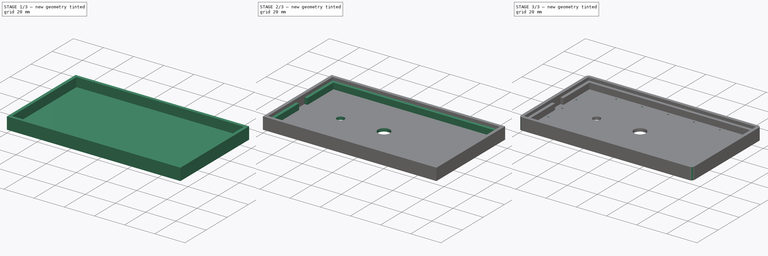
[diagram: build sequence overview — one tinted view per stage of 3, left to right]
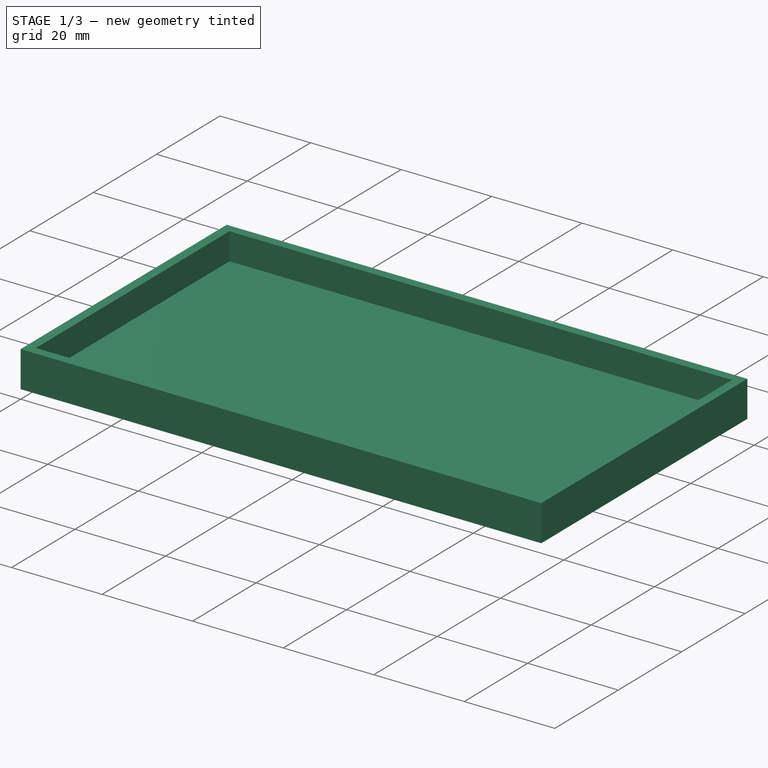
[diagram: stage 1 of 3 — iso view after this stage's code; geometry added in this stage tinted green]
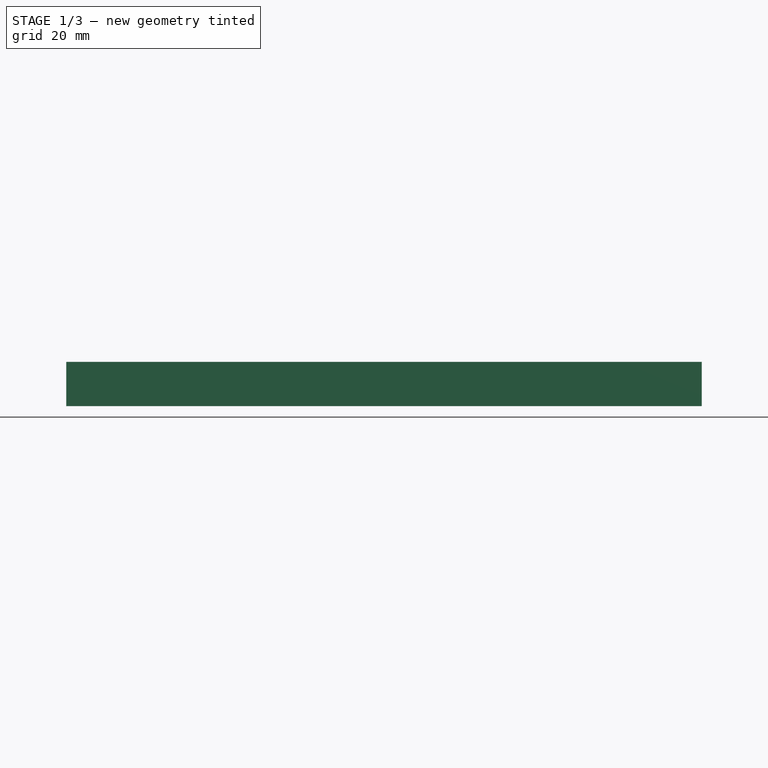
[diagram: stage 1 of 3 — front view after this stage's code; geometry added in this stage tinted green]
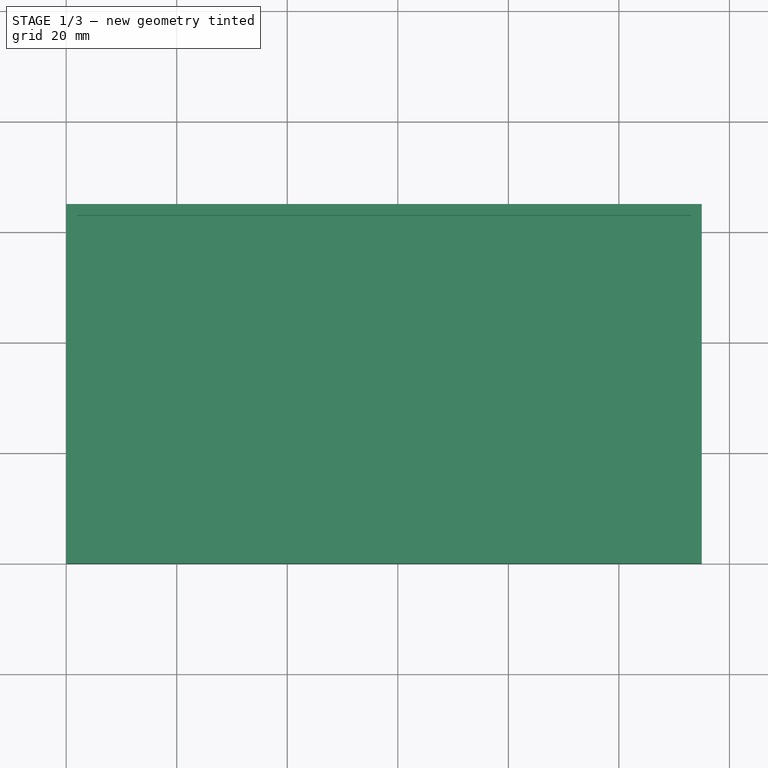
[diagram: stage 1 of 3 — top view after this stage's code; geometry added in this stage tinted green]
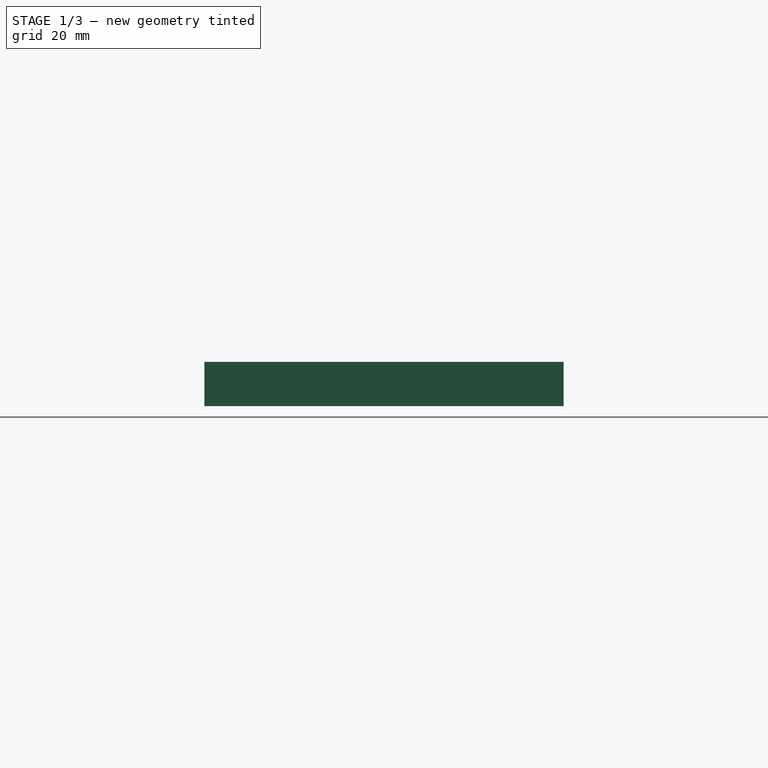
[diagram: stage 1 of 3 — right view after this stage's code; geometry added in this stage tinted green]
FCSTD DOCUMENT  (FreeCAD 0.19R24291 (Git))
Label: Outdoor_solar_panel
License: All rights reserved
LicenseURL: http://en.wikipedia.org/wiki/All_rights_reserved
objects: Sketcher::SketchObject×6, PartDesign::Pocket×4, PartDesign::Pad×2, PartDesign::Fillet×1, PartDesign::Body×1
note: 21 computed .brp shape members not serialized (recipe doc carries the construction recipe); baked Part::Feature solids carry a one-line shape summary decoded from their .brp

FEATURE [Sketcher::SketchObject] Sketch
  FullyConstrained = true
  MapMode = 5
  Support = -> [XY_Plane]
  sketch-geometry (4):
    g0: LineSegment StartX=0 StartY=0 StartZ=0 EndX=115 EndY=0 EndZ=0
    g1: LineSegment StartX=115 StartY=0 StartZ=0 EndX=115 EndY=65 EndZ=0
    g2: LineSegment StartX=115 StartY=65 StartZ=0 EndX=0 EndY=65 EndZ=0
    g3: LineSegment StartX=0 StartY=65 StartZ=0 EndX=0 EndY=0 EndZ=0
  constraints (11):
    c: Coincident(g0,g1)
    c: Coincident(g1,g2)
    c: Coincident(g2,g3)
    c: Coincident(g3,g0)
    c: Horizontal(g0)
    c: Horizontal(g2)
    c: Vertical(g1)
    c: Vertical(g3)
    c: Coincident(g0,g-1)
    c: DistanceX(g0,g0) = 115
    c: DistanceY(g1,g1) = 65
FEATURE [PartDesign::Pad] Pad
  Direction = (1,1,1)
  Length = 8
  Length2 = 100
  Profile = -> Sketch
  Type = 0
FEATURE [Sketcher::SketchObject] Sketch001
  FullyConstrained = true
  MapMode = 5
  Placement = pos=(0,0,8) rot=(0,0,1;0rad)
  Support = -> [Pad]
  sketch-geometry (4):
    g0: LineSegment StartX=2 StartY=2 StartZ=0 EndX=113 EndY=2 EndZ=0
    g1: LineSegment StartX=113 StartY=2 StartZ=0 EndX=113 EndY=63 EndZ=0
    g2: LineSegment StartX=113 StartY=63 StartZ=0 EndX=2 EndY=63 EndZ=0
    g3: LineSegment StartX=2 StartY=63 StartZ=0 EndX=2 EndY=2 EndZ=0
  constraints (12):
    c: Coincident(g0,g1)
    c: Coincident(g1,g2)
    c: Coincident(g2,g3)
    c: Coincident(g3,g0)
    c: Horizontal(g0)
    c: Horizontal(g2)
    c: Vertical(g1)
    c: Vertical(g3)
    c: DistanceX(g0,g0) = 111
    c: DistanceY(g1,g1) = 61
    c: DistanceY(g-1,g0) = 2
    c: DistanceX(g-1,g0) = 2
FEATURE [PartDesign::Pocket] Pocket
  BaseFeature = -> Pad
  Length = 6
  Length2 = 100
  Profile = -> Sketch001
  Type = 0
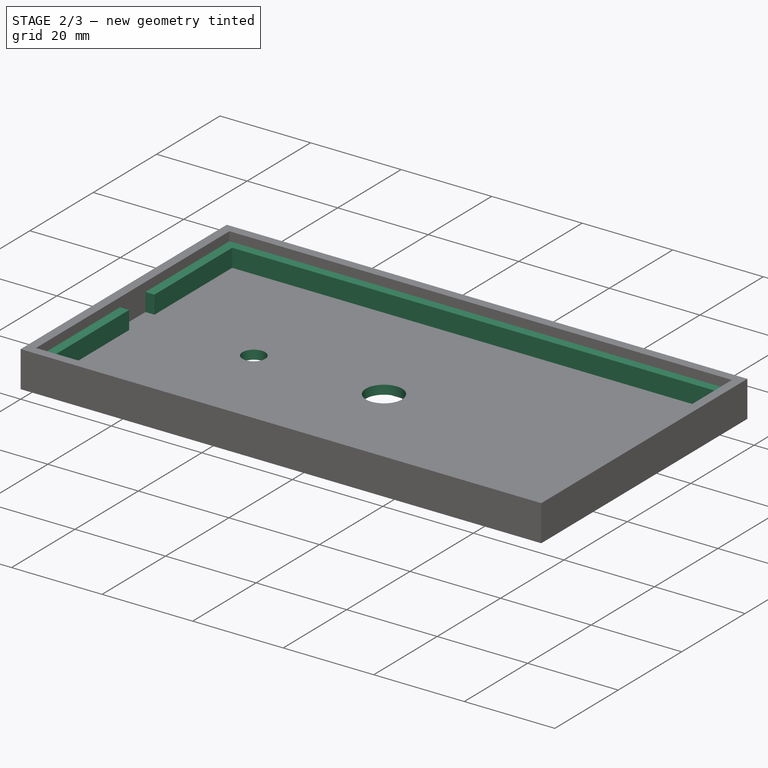
[diagram: stage 2 of 3 — iso view after this stage's code; geometry added in this stage tinted green]
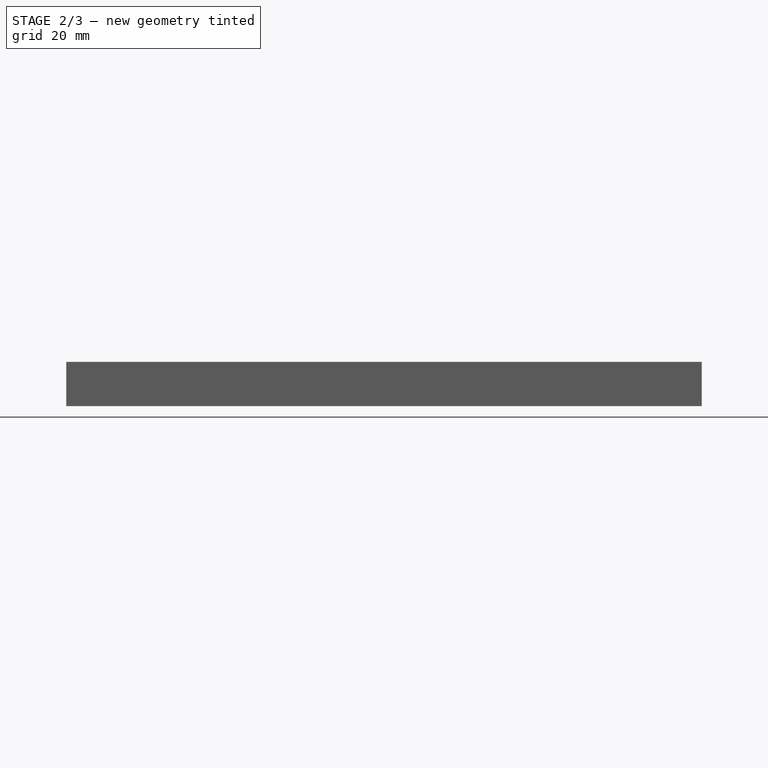
[diagram: stage 2 of 3 — front view after this stage's code; geometry added in this stage tinted green]
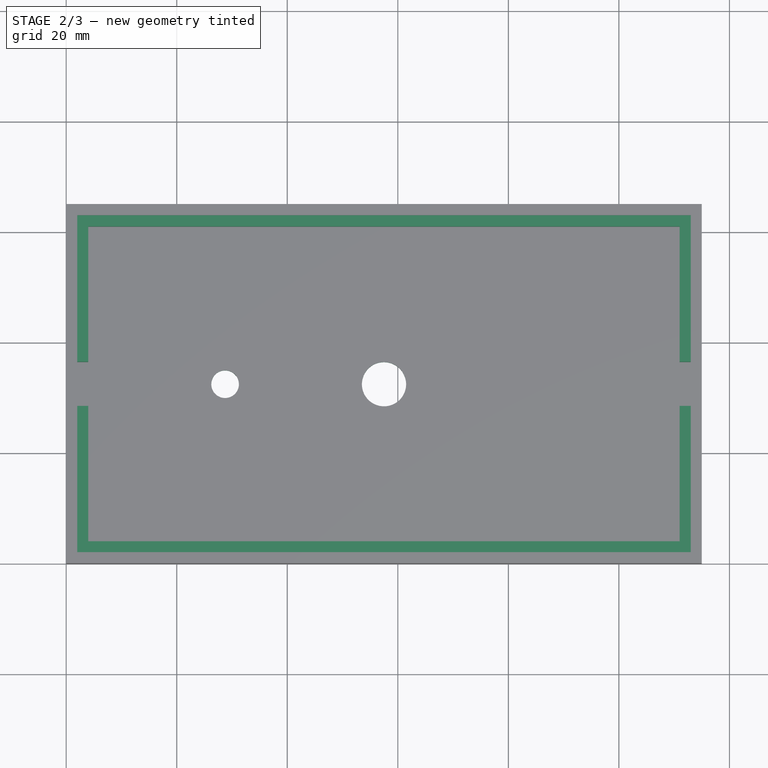
[diagram: stage 2 of 3 — top view after this stage's code; geometry added in this stage tinted green]
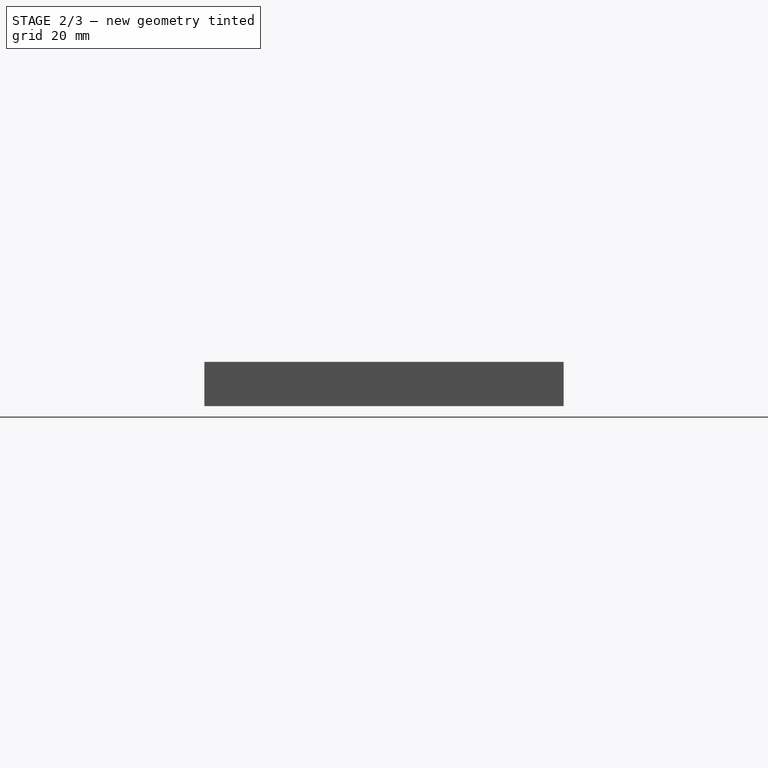
[diagram: stage 2 of 3 — right view after this stage's code; geometry added in this stage tinted green]
FEATURE [Sketcher::SketchObject] Sketch002
  FullyConstrained = true
  MapMode = 5
  Placement = pos=(0,0,2) rot=(0,0,1;0rad)
  Support = -> [Pocket]
  sketch-geometry (18):
    g0: LineSegment StartX=2 StartY=63 StartZ=0 EndX=113 EndY=63 EndZ=0
    g1: LineSegment StartX=113 StartY=63 StartZ=0 EndX=113 EndY=36.5 EndZ=0
    g2: LineSegment StartX=113 StartY=2 StartZ=0 EndX=2 EndY=2 EndZ=0
    g3: LineSegment StartX=2 StartY=2 StartZ=0 EndX=2 EndY=28.5 EndZ=0
    g4: LineSegment StartX=4 StartY=61 StartZ=0 EndX=111 EndY=61 EndZ=0
    g5: LineSegment StartX=111 StartY=61 StartZ=0 EndX=111 EndY=36.5 EndZ=0
    g6: LineSegment StartX=111 StartY=4 StartZ=0 EndX=4 EndY=4 EndZ=0
    g7: LineSegment StartX=4 StartY=4 StartZ=0 EndX=4 EndY=28.5 EndZ=0
    g8: LineSegment StartX=2 StartY=36.5 StartZ=0 EndX=113 EndY=36.5 EndZ=0
    g9: LineSegment StartX=2 StartY=28.5 StartZ=0 EndX=113 EndY=28.5 EndZ=0
    g10: LineSegment StartX=2 StartY=36.5 StartZ=0 EndX=4 EndY=36.5 EndZ=0
    g11: LineSegment StartX=2 StartY=28.5 StartZ=0 EndX=4 EndY=28.5 EndZ=0
    g12: LineSegment StartX=113 StartY=36.5 StartZ=0 EndX=111 EndY=36.5 EndZ=0
    g13: LineSegment StartX=113 StartY=28.5 StartZ=0 EndX=111 EndY=28.5 EndZ=0
    g14: LineSegment StartX=111 StartY=28.5 StartZ=0 EndX=111 EndY=4 EndZ=0
    g15: LineSegment StartX=113 StartY=28.5 StartZ=0 EndX=113 EndY=2 EndZ=0
    g16: LineSegment StartX=4 StartY=36.5 StartZ=0 EndX=4 EndY=61 EndZ=0
    g17: LineSegment StartX=2 StartY=36.5 StartZ=0 EndX=2 EndY=63 EndZ=0
  constraints (52):
    c: Coincident(g0,g1)
    c: Coincident(g15,g2)
    c: Coincident(g2,g3)
    c: Coincident(g17,g0)
    c: Horizontal(g0)
    c: Horizontal(g2)
    c: Vertical(g1)
    c: Vertical(g3)
    c: Coincident(g4,g5)
    c: Coincident(g14,g6)
    c: Coincident(g6,g7)
    c: Coincident(g16,g4)
    c: Horizontal(g4)
    c: Horizontal(g6)
    c: Vertical(g5)
    c: Vertical(g7)
    c: DistanceX(g2,g2) = 111
    c: DistanceY(g3,g17) = 61
    c: DistanceX(g-1,g2) = 2
    c: DistanceY(g-1,g2) = 2
    c: DistanceY(g2,g6) = 2
    c: DistanceX(g2,g6) = 2
    c: DistanceX(g6,g6) = 107
    c: DistanceY(g14,g5) = 57
    c: Horizontal(g8)
    c: Horizontal(g9)
    c: DistanceY(g9,g8) = 8
    c: DistanceY(g6,g9) = 24.5
    c: Coincident(g10,g8)
    c: PointOnObject(g10,g7)
    c: Horizontal(g10)
    c: Coincident(g11,g9)
    c: PointOnObject(g11,g9)
    c: PointOnObject(g11,g7)
    c: Coincident(g12,g8)
    c: PointOnObject(g12,g8)
    c: Coincident(g13,g9)
    c: PointOnObject(g13,g9)
    c: PointOnObject(g12,g5)
    c: PointOnObject(g13,g5)
    c: PointOnObject(g5,g8)
    c: PointOnObject(g14,g9)
    c: Tangent(g5,g14)
    c: Coincident(g1,g8)
    c: Coincident(g15,g9)
    c: Tangent(g1,g15)
    c: PointOnObject(g7,g9)
    c: PointOnObject(g16,g8)
    c: Tangent(g7,g16)
    c: Coincident(g3,g9)
    c: Coincident(g17,g8)
    c: Tangent(g3,g17)
FEATURE [PartDesign::Pad] Pad001
  BaseFeature = -> Pocket
  Direction = (1,1,1)
  Length = 4
  Length2 = 100
  Profile = -> Sketch002
  Type = 0
FEATURE [Sketcher::SketchObject] Sketch003
  FullyConstrained = true
  MapMode = 5
  Placement = pos=(0,0,0) rot=(1,0,0;3.14159rad)
  Support = -> [Pad001]
  sketch-geometry (3):
    g0: LineSegment StartX=0 StartY=-32.5 StartZ=0 EndX=115 EndY=-32.5 EndZ=0
    g1: LineSegment StartX=28.75 StartY=0 StartZ=0 EndX=28.75 EndY=-65 EndZ=0
    g2: Circle CenterX=28.75 CenterY=-32.5 CenterZ=0 NormalX=0 NormalY=0 NormalZ=1 AngleXU=0 Radius=2.5
  constraints (11):
    c: PointOnObject(g0,g-2)
    c: Horizontal(g0)
    c: PointOnObject(g1,g-1)
    c: Vertical(g1)
    c: DistanceX(g0,g0) = 115
    c: DistanceY(g1,g1) = 65
    c: DistanceY(g0,g-1) = 32.5
    c: DistanceX(g-1,g1) = 28.75
    c: PointOnObject(g2,g1)
    c: PointOnObject(g2,g0)
    c: Radius(g2) = 2.5
FEATURE [PartDesign::Pocket] Pocket001
  BaseFeature = -> Pad001
  Length = 2
  Length2 = 100
  Profile = -> Sketch003
  Type = 0
FEATURE [Sketcher::SketchObject] Sketch004
  FullyConstrained = true
  MapMode = 5
  Placement = pos=(0,0,0) rot=(1,0,0;3.14159rad)
  Support = -> [Pocket001]
  sketch-geometry (1):
    g0: Circle CenterX=57.5 CenterY=-32.5 CenterZ=0 NormalX=0 NormalY=0 NormalZ=1 AngleXU=0 Radius=4
  constraints (3):
    c: DistanceX(g-1,g0) = 57.5
    c: DistanceY(g0,g-1) = 32.5
    c: Radius(g0) = 4
FEATURE [PartDesign::Pocket] Pocket002
  BaseFeature = -> Pocket001
  Length = 5
  Length2 = 100
  Profile = -> Sketch004
  Type = 0
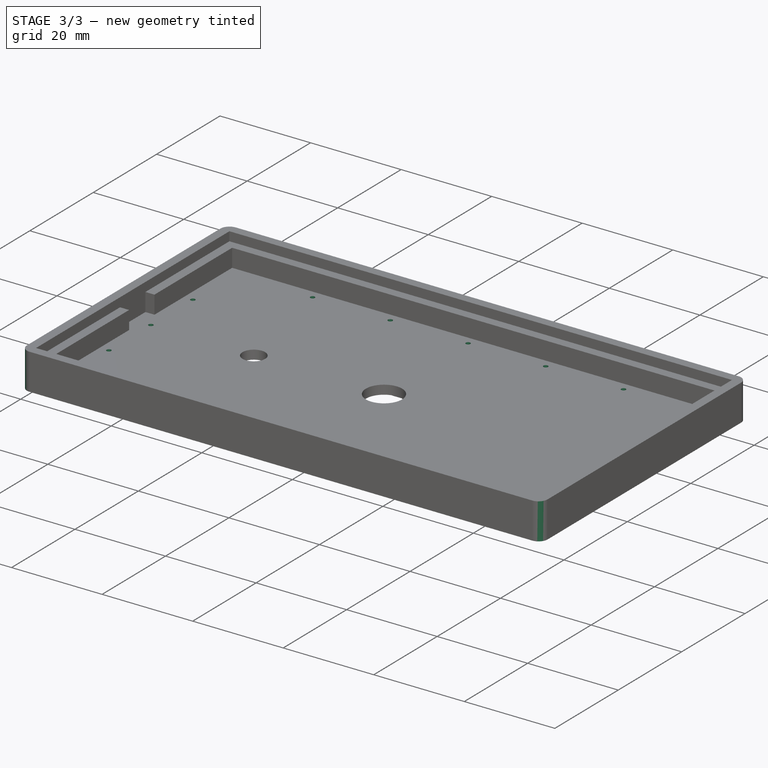
[diagram: stage 3 of 3 — iso view after this stage's code; geometry added in this stage tinted green]
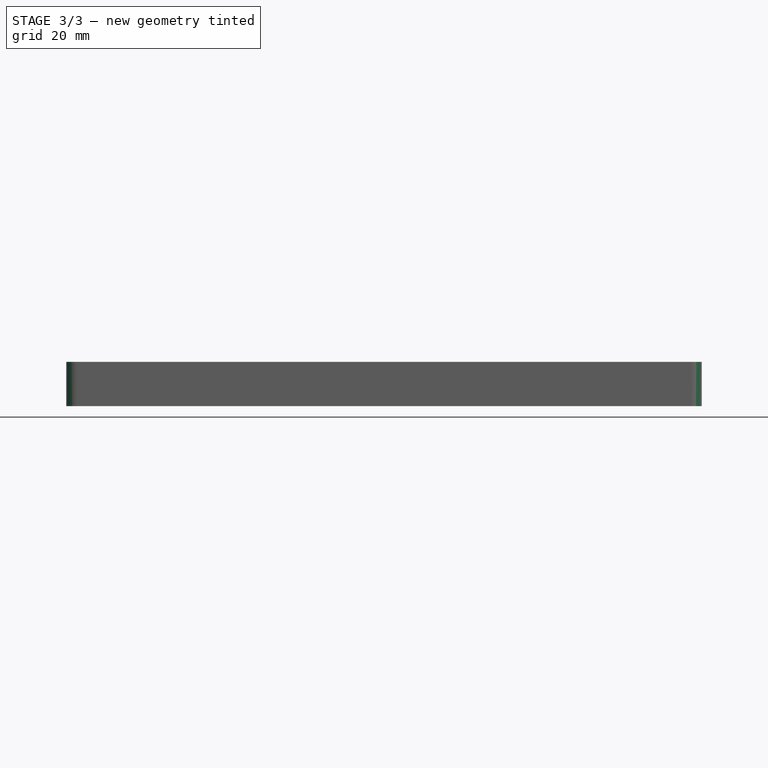
[diagram: stage 3 of 3 — front view after this stage's code; geometry added in this stage tinted green]
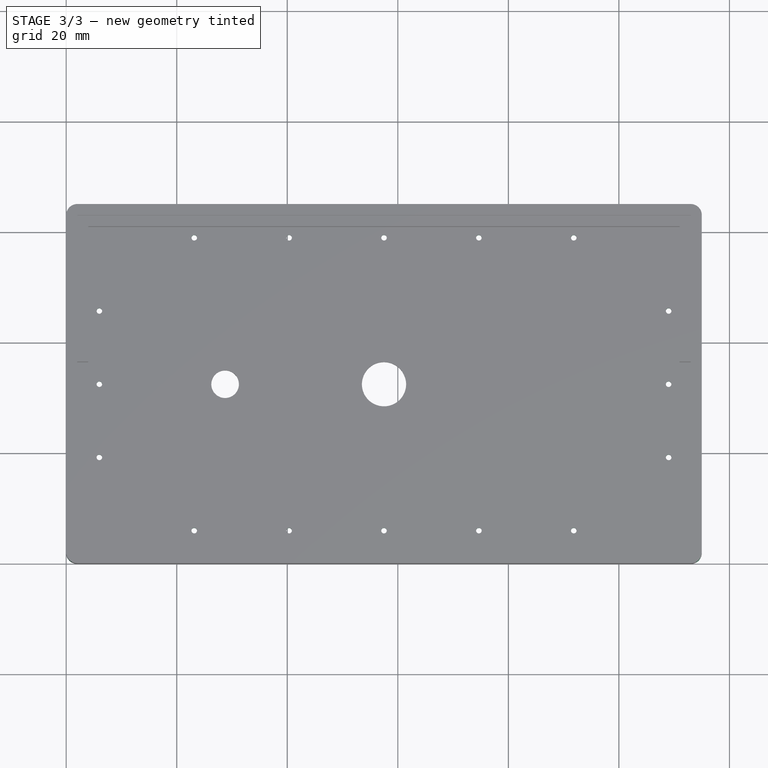
[diagram: stage 3 of 3 — top view after this stage's code; geometry added in this stage tinted green]
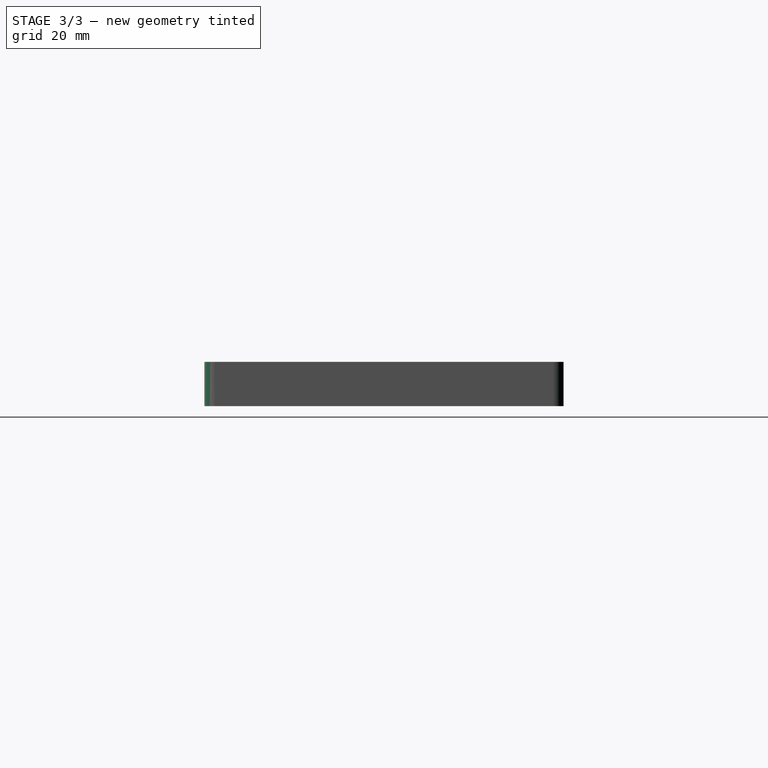
[diagram: stage 3 of 3 — right view after this stage's code; geometry added in this stage tinted green]
FEATURE [PartDesign::Fillet] Fillet
  Base = -> Pocket002 [Edge1,Edge5,Edge2,Edge8]
  BaseFeature = -> Pocket002
  Radius = 2
  SupportTransform = false
FEATURE [Sketcher::SketchObject] Sketch005
  FullyConstrained = true
  MapMode = 5
  Placement = pos=(0,0,2) rot=(0,0,1;0rad)
  Support = -> [Fillet]
  sketch-geometry (36):
    g0: LineSegment StartX=6 StartY=59 StartZ=0 EndX=109 EndY=59 EndZ=0
    g1: LineSegment StartX=109 StartY=59 StartZ=0 EndX=109 EndY=6 EndZ=0
    g2: LineSegment StartX=109 StartY=6 StartZ=0 EndX=6 EndY=6 EndZ=0
    g3: LineSegment StartX=6 StartY=6 StartZ=0 EndX=6 EndY=59 EndZ=0
    g4: GeomPoint X=23.167 Y=59 Z=0
    g5: GeomPoint X=40.334 Y=59 Z=0
    g6: GeomPoint X=57.501 Y=59 Z=0
    g7: GeomPoint X=74.668 Y=59 Z=0
    g8: GeomPoint X=91.835 Y=59 Z=0
    g9: GeomPoint X=23.167 Y=6 Z=0
    g10: GeomPoint X=40.334 Y=6 Z=0
    g11: GeomPoint X=57.501 Y=6 Z=0
    g12: GeomPoint X=74.668 Y=6 Z=0
    g13: GeomPoint X=91.835 Y=6 Z=0
    g14: GeomPoint X=6 Y=45.75 Z=0
    g15: GeomPoint X=6 Y=32.5 Z=0
    g16: GeomPoint X=6 Y=19.25 Z=0
    g17: GeomPoint X=109 Y=45.75 Z=0
    g18: GeomPoint X=109 Y=32.5 Z=0
    g19: GeomPoint X=109 Y=19.25 Z=0
    g20: Circle CenterX=23.167 CenterY=59 CenterZ=0 NormalX=0 NormalY=0 NormalZ=1 AngleXU=0 Radius=0.5
    g21: Circle CenterX=40.334 CenterY=59 CenterZ=0 NormalX=0 NormalY=0 NormalZ=1 AngleXU=0 Radius=0.5
    g22: Circle CenterX=57.501 CenterY=59 CenterZ=0 NormalX=0 NormalY=0 NormalZ=1 AngleXU=0 Radius=0.5
    g23: Circle CenterX=74.668 CenterY=59 CenterZ=0 NormalX=0 NormalY=0 NormalZ=1 AngleXU=0 Radius=0.5
    g24: Circle CenterX=91.835 CenterY=59 CenterZ=0 NormalX=0 NormalY=0 NormalZ=1 AngleXU=0 Radius=0.5
    g25: Circle CenterX=109 CenterY=45.75 CenterZ=0 NormalX=0 NormalY=0 NormalZ=1 AngleXU=0 Radius=0.5
    g26: Circle CenterX=109 CenterY=32.5 CenterZ=0 NormalX=0 NormalY=0 NormalZ=1 AngleXU=0 Radius=0.5
    g27: Circle CenterX=109 CenterY=19.25 CenterZ=0 NormalX=0 NormalY=0 NormalZ=1 AngleXU=0 Radius=0.5
    g28: Circle CenterX=91.835 CenterY=6 CenterZ=0 NormalX=0 NormalY=0 NormalZ=1 AngleXU=0 Radius=0.5
    g29: Circle CenterX=74.668 CenterY=6 CenterZ=0 NormalX=0 NormalY=0 NormalZ=1 AngleXU=0 Radius=0.5
    g30: Circle CenterX=57.501 CenterY=6 CenterZ=0 NormalX=0 NormalY=0 NormalZ=1 AngleXU=0 Radius=0.5
    g31: Circle CenterX=40.334 CenterY=6 CenterZ=0 NormalX=0 NormalY=0 NormalZ=1 AngleXU=0 Radius=0.5
    g32: Circle CenterX=6 CenterY=19.25 CenterZ=0 NormalX=0 NormalY=0 NormalZ=1 AngleXU=0 Radius=0.5
    g33: Circle CenterX=6 CenterY=32.5 CenterZ=0 NormalX=0 NormalY=0 NormalZ=1 AngleXU=0 Radius=0.5
    g34: Circle CenterX=6 CenterY=45.75 CenterZ=0 NormalX=0 NormalY=0 NormalZ=1 AngleXU=0 Radius=0.5
    g35: Circle CenterX=23.167 CenterY=6 CenterZ=0 NormalX=0 NormalY=0 NormalZ=1 AngleXU=0 Radius=0.5
  constraints (76):
    c: Coincident(g0,g1)
    c: Coincident(g2,g3)
    c: Coincident(g3,g0)
    c: Horizontal(g0)
    c: Horizontal(g2)
    c: Vertical(g1)
    c: Vertical(g3)
    c: DistanceX(g-1,g2) = 6
    c: DistanceY(g-1,g2) = 6
    c: Coincident(g2,g1)
    c: DistanceY(g3,g3) = 53
    c: DistanceX(g2,g2) = 103
    c: PointOnObject(g4,g0)
    c: PointOnObject(g5,g0)
    c: PointOnObject(g6,g0)
    c: PointOnObject(g7,g0)
    c: PointOnObject(g8,g0)
    c: PointOnObject(g9,g2)
    c: PointOnObject(g10,g2)
    c: PointOnObject(g11,g2)
    c: PointOnObject(g12,g2)
    c: PointOnObject(g13,g2)
    c: PointOnObject(g14,g3)
    c: PointOnObject(g15,g3)
    c: PointOnObject(g16,g3)
    c: PointOnObject(g17,g1)
    c: PointOnObject(g18,g1)
    c: PointOnObject(g19,g1)
    c: DistanceX(g0,g4) = 17.167
    c: DistanceX(g4,g5) = 17.167
    c: DistanceX(g5,g6) = 17.167
    c: DistanceX(g6,g7) = 17.167
    c: DistanceX(g7,g8) = 17.167
    c: DistanceX(g2,g9) = 17.167
    c: DistanceX(g9,g10) = 17.167
    c: DistanceX(g10,g11) = 17.167
    c: DistanceX(g11,g12) = 17.167
    c: DistanceX(g12,g13) = 17.167
    c: DistanceY(g14,g0) = 13.25
    c: DistanceY(g15,g14) = 13.25
    c: DistanceY(g16,g15) = 13.25
    c: DistanceY(g17,g0) = 13.25
    c: DistanceY(g18,g17) = 13.25
    c: DistanceY(g19,g18) = 13.25
    c: Coincident(g20,g4)
    c: Coincident(g21,g5)
    c: Coincident(g22,g6)
    c: Coincident(g23,g7)
    c: Coincident(g24,g8)
    c: Coincident(g25,g17)
    c: Coincident(g26,g18)
    c: Coincident(g27,g19)
    c: Coincident(g28,g13)
    c: Coincident(g29,g12)
    c: Coincident(g30,g11)
    c: Coincident(g31,g10)
    c: Coincident(g32,g16)
    c: Coincident(g33,g15)
    c: Coincident(g34,g14)
    c: Radius(g20) = 0.5
    c: Coincident(g35,g9)
    c: Equal(g20,g21)
    c: Equal(g21,g22)
    c: Equal(g22,g23)
    c: Equal(g23,g24)
    c: Equal(g24,g25)
    c: Equal(g25,g26)
    c: Equal(g26,g27)
    c: Equal(g27,g28)
    c: Equal(g28,g29)
    c: Equal(g29,g30)
    c: Equal(g30,g31)
    c: Equal(g31,g35)
    c: Equal(g35,g32)
    c: Equal(g32,g33)
    c: Equal(g33,g34)
FEATURE [PartDesign::Pocket] Pocket003
  BaseFeature = -> Fillet
  Length = 5
  Length2 = 100
  Profile = -> Sketch005
  Type = 0
FEATURE [PartDesign::Body] Body
  Group = -> [Sketch,Pad,Sketch001,Pocket,Sketch002,Pad001,Sketch003,Pocket001,Sketch004,Pocket002,Fillet,Sketch005,Pocket003]
  Origin = -> Origin
  Tip = -> Pocket003
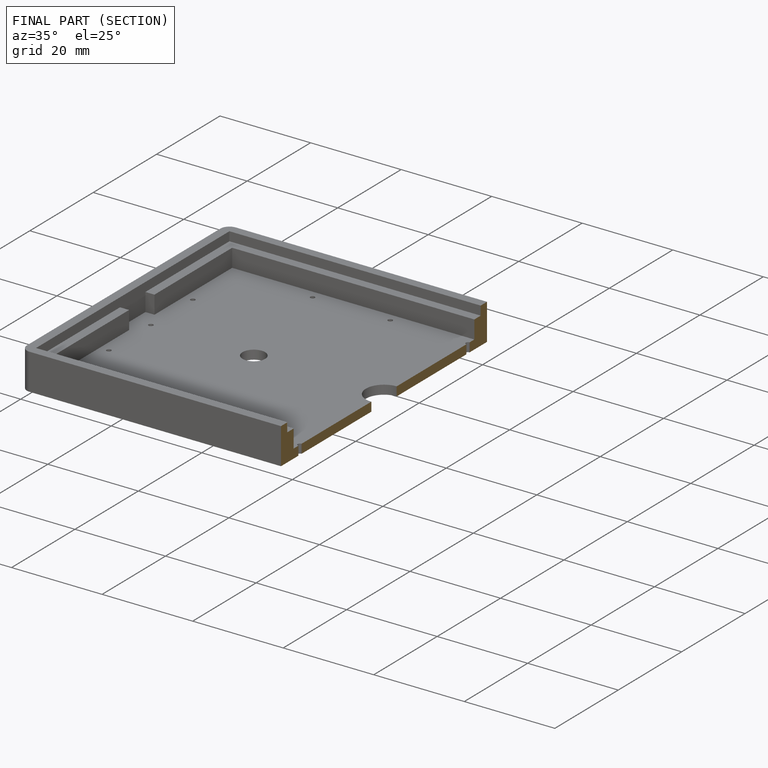
[diagram: finished part — half-section view (interior)]
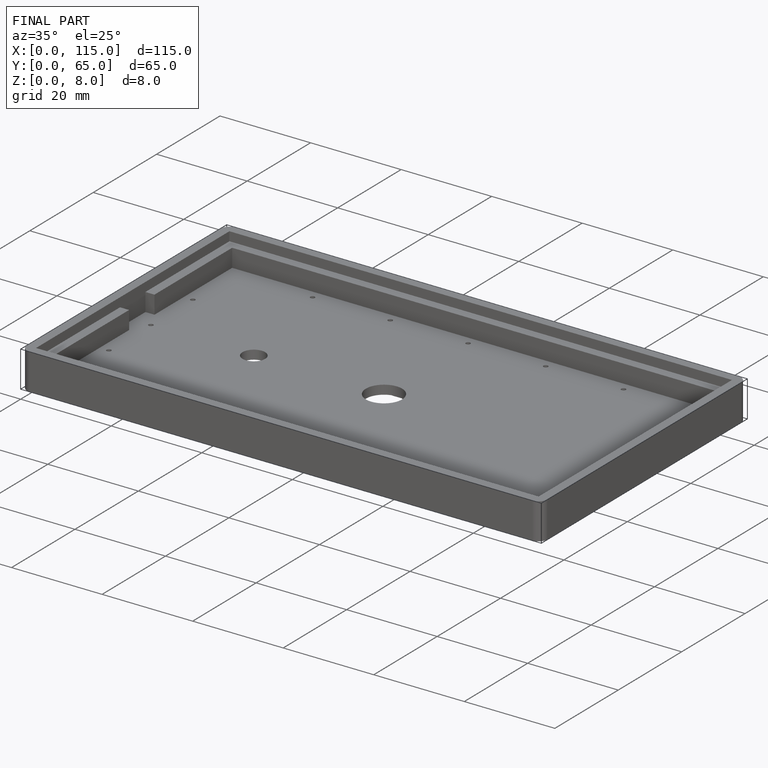
[diagram: finished part — iso view with bounding-box wireframe]
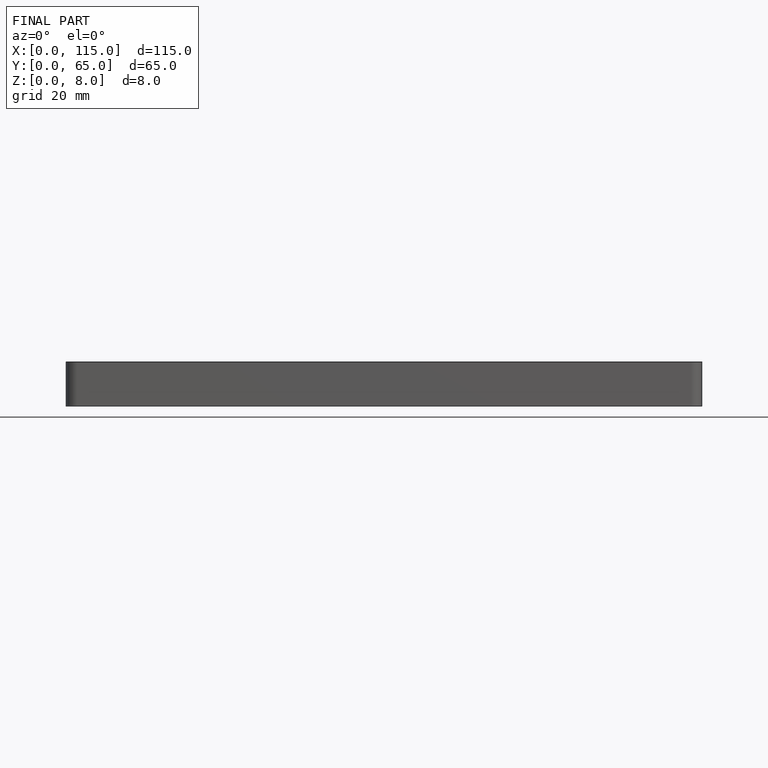
[diagram: finished part — front view with bounding-box wireframe]
